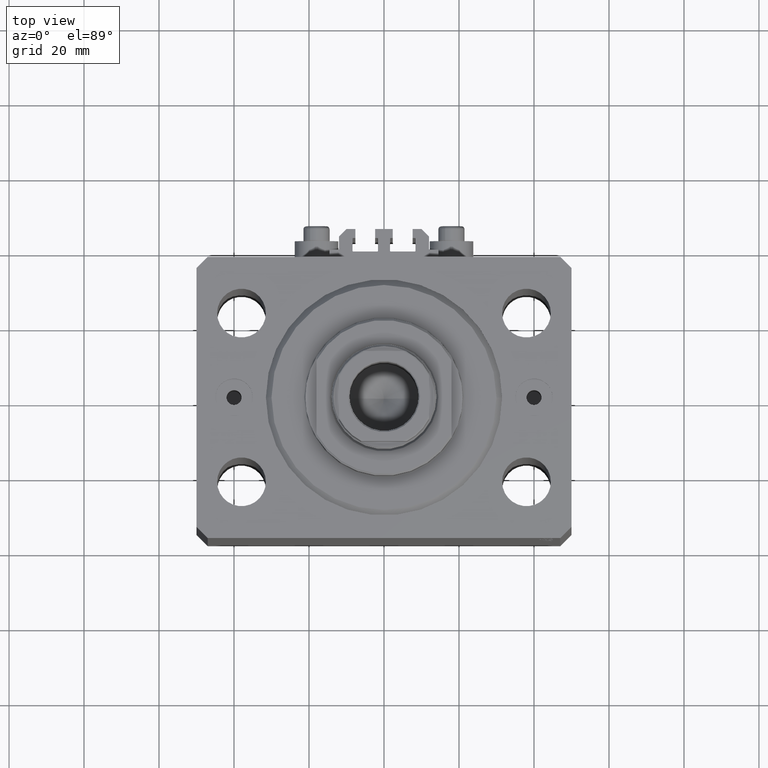
[diagram: clean part render]
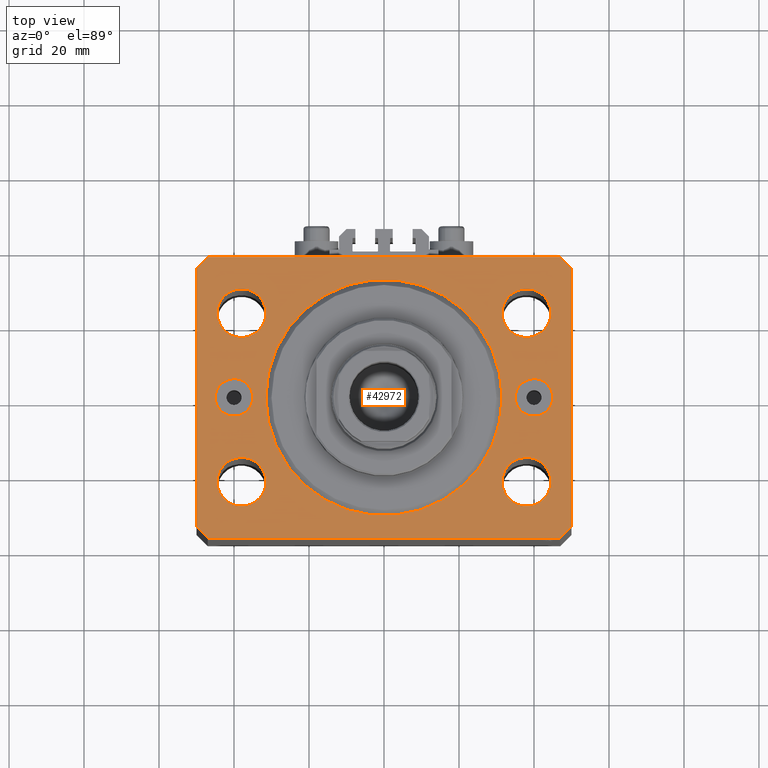
[diagram: same view with one face highlighted and labeled with its STEP entity id]
A machine part, top view. The second image highlights one B-rep face of the part: STEP entity #42972.
In plain terms, the highlighted planar face has unit normal (0, 0, 1).
Its self-contained STEP definition (entity closure, byte-faithful):
#624 = EDGE_CURVE ( 'NONE', #28761, #16161, #25371, .T. ) ;
#760 = CARTESIAN_POINT ( 'NONE',  ( -45.00000000000000000, 6.123233995736762338E-16, 0.000000000000000000 ) ) ;
#809 = LINE ( 'NONE', #14893, #33751 ) ;
#962 = AXIS2_PLACEMENT_3D ( 'NONE', #33482, #41123, #44930 ) ;
#981 = VERTEX_POINT ( 'NONE', #32816 ) ;
#1046 = LINE ( 'NONE', #18722, #46220 ) ;
#1399 = VERTEX_POINT ( 'NONE', #22482 ) ;
#1733 = CARTESIAN_POINT ( 'NONE',  ( -37.99999999999999289, -22.50000000000000000, 0.000000000000000000 ) ) ;
#1792 = ORIENTED_EDGE ( 'NONE', *, *, #4326, .F. ) ;
#1823 = VERTEX_POINT ( 'NONE', #39813 ) ;
#2071 = CARTESIAN_POINT ( 'NONE',  ( -40.00000000000000000, 0.000000000000000000, 0.000000000000000000 ) ) ;
#2648 = VECTOR ( 'NONE', #19748, 1000.000000000000114 ) ;
#2804 = CIRCLE ( 'NONE', #21122, 4.999999999999997335 ) ;
#2998 = EDGE_LOOP ( 'NONE', ( #16877, #42539, #40262, #36018, #20210, #13396, #7115, #42235 ) ) ;
#3267 = CARTESIAN_POINT ( 'NONE',  ( -35.00000000000000000, 0.000000000000000000, 0.000000000000000000 ) ) ;
#3641 = DIRECTION ( 'NONE',  ( 1.000000000000000000, 0.000000000000000000, 0.000000000000000000 ) ) ;
#3678 = CARTESIAN_POINT ( 'NONE',  ( 50.00000000000051870, 34.49999999999995026, 0.000000000000000000 ) ) ;
#3839 = DIRECTION ( 'NONE',  ( 0.000000000000000000, 0.000000000000000000, 1.000000000000000000 ) ) ;
#4183 = ORIENTED_EDGE ( 'NONE', *, *, #43724, .F. ) ;
#4326 = EDGE_CURVE ( 'NONE', #8476, #27739, #35389, .T. ) ;
#4404 = ORIENTED_EDGE ( 'NONE', *, *, #32918, .F. ) ;
#4913 = EDGE_LOOP ( 'NONE', ( #40438, #43888 ) ) ;
#5127 = EDGE_LOOP ( 'NONE', ( #35533, #23643 ) ) ;
#5786 = EDGE_CURVE ( 'NONE', #43250, #981, #24053, .T. ) ;
#5846 = EDGE_CURVE ( 'NONE', #9280, #25468, #7205, .T. ) ;
#5862 = LINE ( 'NONE', #27843, #34801 ) ;
#5881 = DIRECTION ( 'NONE',  ( 1.000000000000000000, 0.000000000000000000, 0.000000000000000000 ) ) ;
#5920 = FACE_BOUND ( 'NONE', #28524, .T. ) ;
#6667 = LINE ( 'NONE', #45672, #28736 ) ;
#6945 = ORIENTED_EDGE ( 'NONE', *, *, #36798, .F. ) ;
#7115 = ORIENTED_EDGE ( 'NONE', *, *, #24362, .T. ) ;
#7205 = CIRCLE ( 'NONE', #40768, 4.999999999999997335 ) ;
#7244 = DIRECTION ( 'NONE',  ( 0.000000000000000000, -0.000000000000000000, -1.000000000000000000 ) ) ;
#7776 = EDGE_CURVE ( 'NONE', #8882, #1823, #35689, .T. ) ;
#7910 = DIRECTION ( 'NONE',  ( 0.000000000000000000, 0.000000000000000000, 1.000000000000000000 ) ) ;
#8434 = CARTESIAN_POINT ( 'NONE',  ( 50.00000000000000000, -34.50000000000000711, 0.000000000000000000 ) ) ;
#8476 = VERTEX_POINT ( 'NONE', #30689 ) ;
#8882 = VERTEX_POINT ( 'NONE', #16052 ) ;
#9114 = ORIENTED_EDGE ( 'NONE', *, *, #36540, .T. ) ;
#9177 = CARTESIAN_POINT ( 'NONE',  ( 44.50000000000000000, 22.49999999999998934, 0.000000000000000000 ) ) ;
#9280 = VERTEX_POINT ( 'NONE', #3267 ) ;
#9493 = FACE_OUTER_BOUND ( 'NONE', #2998, .T. ) ;
#9703 = ORIENTED_EDGE ( 'NONE', *, *, #36447, .F. ) ;
#10044 = CIRCLE ( 'NONE', #11568, 6.499999999999999112 ) ;
#10147 = ORIENTED_EDGE ( 'NONE', *, *, #624, .T. ) ;
#10655 = LINE ( 'NONE', #40042, #24564 ) ;
#11212 = ORIENTED_EDGE ( 'NONE', *, *, #29183, .F. ) ;
#11330 = CARTESIAN_POINT ( 'NONE',  ( -40.00000000000000000, 0.000000000000000000, 0.000000000000000000 ) ) ;
#11568 = AXIS2_PLACEMENT_3D ( 'NONE', #40505, #36229, #43406 ) ;
#12655 = EDGE_CURVE ( 'NONE', #16584, #23881, #21812, .T. ) ;
#12843 = FACE_BOUND ( 'NONE', #40115, .T. ) ;
#13070 = CARTESIAN_POINT ( 'NONE',  ( -31.49999999999999289, -22.50000000000000000, 0.000000000000000000 ) ) ;
#13396 = ORIENTED_EDGE ( 'NONE', *, *, #13492, .T. ) ;
#13492 = EDGE_CURVE ( 'NONE', #1399, #38807, #1046, .T. ) ;
#13560 = CARTESIAN_POINT ( 'NONE',  ( 0.000000000000000000, 0.000000000000000000, 0.000000000000000000 ) ) ;
#14070 = DIRECTION ( 'NONE',  ( 1.000000000000000000, -1.476360405086644309E-16, 0.000000000000000000 ) ) ;
#14723 = CARTESIAN_POINT ( 'NONE',  ( 31.50000000000000000, 22.49999999999998934, 0.000000000000000000 ) ) ;
#14780 = AXIS2_PLACEMENT_3D ( 'NONE', #44702, #7910, #26564 ) ;
#14805 = CIRCLE ( 'NONE', #17100, 31.50000000000000000 ) ;
#14892 = EDGE_CURVE ( 'NONE', #37619, #8882, #5862, .T. ) ;
#14893 = CARTESIAN_POINT ( 'NONE',  ( 50.00000000000000000, -34.50000000000000711, 0.000000000000000000 ) ) ;
#15058 = ORIENTED_EDGE ( 'NONE', *, *, #15812, .F. ) ;
#15309 = AXIS2_PLACEMENT_3D ( 'NONE', #11330, #42085, #26153 ) ;
#15395 = CARTESIAN_POINT ( 'NONE',  ( 0.000000000000000000, 0.000000000000000000, 0.000000000000000000 ) ) ;
#15557 = AXIS2_PLACEMENT_3D ( 'NONE', #44008, #36145, #3641 ) ;
#15636 = VECTOR ( 'NONE', #28285, 1000.000000000000000 ) ;
#15812 = EDGE_CURVE ( 'NONE', #23881, #16584, #37895, .T. ) ;
#16052 = CARTESIAN_POINT ( 'NONE',  ( -50.00000000000001421, 34.50000000000000000, 0.000000000000000000 ) ) ;
#16161 = VERTEX_POINT ( 'NONE', #27268 ) ;
#16264 = CARTESIAN_POINT ( 'NONE',  ( -31.50000000000000000, 22.49999999999999645, 0.000000000000000000 ) ) ;
#16360 = CARTESIAN_POINT ( 'NONE',  ( 31.50000000000000000, 0.000000000000000000, 0.000000000000000000 ) ) ;
#16584 = VERTEX_POINT ( 'NONE', #30736 ) ;
#16599 = DIRECTION ( 'NONE',  ( 0.000000000000000000, 0.000000000000000000, 1.000000000000000000 ) ) ;
#16877 = ORIENTED_EDGE ( 'NONE', *, *, #42039, .T. ) ;
#17100 = AXIS2_PLACEMENT_3D ( 'NONE', #15395, #19452, #37605 ) ;
#17151 = DIRECTION ( 'NONE',  ( 0.000000000000000000, 0.000000000000000000, 1.000000000000000000 ) ) ;
#17397 = CARTESIAN_POINT ( 'NONE',  ( 38.00000000000000000, 22.49999999999998934, 0.000000000000000000 ) ) ;
#17407 = AXIS2_PLACEMENT_3D ( 'NONE', #17397, #46294, #39134 ) ;
#18423 = DIRECTION ( 'NONE',  ( 1.000000000000000000, 0.000000000000000000, 0.000000000000000000 ) ) ;
#18505 = DIRECTION ( 'NONE',  ( 1.000000000000000000, 0.000000000000000000, 0.000000000000000000 ) ) ;
#18722 = CARTESIAN_POINT ( 'NONE',  ( 47.00000000000000000, -37.50000000000000711, 0.000000000000000000 ) ) ;
#19452 = DIRECTION ( 'NONE',  ( 0.000000000000000000, 0.000000000000000000, 1.000000000000000000 ) ) ;
#19635 = VERTEX_POINT ( 'NONE', #14723 ) ;
#19748 = DIRECTION ( 'NONE',  ( -0.7071067811865361374, 0.7071067811865588970, 0.000000000000000000 ) ) ;
#19802 = CARTESIAN_POINT ( 'NONE',  ( -31.50000000000000000, 3.857637417314162689E-15, 0.000000000000000000 ) ) ;
#20179 = EDGE_CURVE ( 'NONE', #25468, #9280, #23696, .T. ) ;
#20210 = ORIENTED_EDGE ( 'NONE', *, *, #35617, .T. ) ;
#21122 = AXIS2_PLACEMENT_3D ( 'NONE', #43104, #7244, #21833 ) ;
#21786 = CARTESIAN_POINT ( 'NONE',  ( -47.00000000000001421, 37.50000000000000000, 0.000000000000000000 ) ) ;
#21812 = CIRCLE ( 'NONE', #37824, 6.499999999999999112 ) ;
#21833 = DIRECTION ( 'NONE',  ( 1.000000000000000000, 0.000000000000000000, 0.000000000000000000 ) ) ;
#22047 = VERTEX_POINT ( 'NONE', #36459 ) ;
#22466 = EDGE_LOOP ( 'NONE', ( #10147, #9114 ) ) ;
#22482 = CARTESIAN_POINT ( 'NONE',  ( 47.00000000000000000, -37.50000000000000711, 0.000000000000000000 ) ) ;
#22723 = VECTOR ( 'NONE', #28130, 1000.000000000000000 ) ;
#22755 = AXIS2_PLACEMENT_3D ( 'NONE', #13560, #17151, #28138 ) ;
#23622 = CARTESIAN_POINT ( 'NONE',  ( 45.00000000000000000, 0.000000000000000000, 0.000000000000000000 ) ) ;
#23643 = ORIENTED_EDGE ( 'NONE', *, *, #29356, .F. ) ;
#23696 = CIRCLE ( 'NONE', #15309, 4.999999999999997335 ) ;
#23881 = VERTEX_POINT ( 'NONE', #13070 ) ;
#23997 = EDGE_CURVE ( 'NONE', #1823, #22047, #10655, .T. ) ;
#24053 = LINE ( 'NONE', #45536, #2648 ) ;
#24362 = EDGE_CURVE ( 'NONE', #38807, #43250, #809, .T. ) ;
#24564 = VECTOR ( 'NONE', #39810, 1000.000000000000114 ) ;
#25371 = CIRCLE ( 'NONE', #962, 4.999999999999997335 ) ;
#25468 = VERTEX_POINT ( 'NONE', #760 ) ;
#25546 = CARTESIAN_POINT ( 'NONE',  ( 38.00000000000000000, 22.49999999999998934, 0.000000000000000000 ) ) ;
#25661 = DIRECTION ( 'NONE',  ( 0.7071067811865483499, 0.7071067811865466846, 0.000000000000000000 ) ) ;
#26051 = CARTESIAN_POINT ( 'NONE',  ( -50.00000000000001421, 34.50000000000000000, 0.000000000000000000 ) ) ;
#26153 = DIRECTION ( 'NONE',  ( 1.000000000000000000, 0.000000000000000000, 0.000000000000000000 ) ) ;
#26340 = AXIS2_PLACEMENT_3D ( 'NONE', #25546, #47039, #29592 ) ;
#26564 = DIRECTION ( 'NONE',  ( 1.000000000000000000, 0.000000000000000000, 0.000000000000000000 ) ) ;
#26632 = DIRECTION ( 'NONE',  ( 0.000000000000000000, 0.000000000000000000, 1.000000000000000000 ) ) ;
#26825 = DIRECTION ( 'NONE',  ( 0.000000000000000000, 0.000000000000000000, 1.000000000000000000 ) ) ;
#27178 = CARTESIAN_POINT ( 'NONE',  ( 47.00000000000056843, 37.49999999999999289, 0.000000000000000000 ) ) ;
#27268 = CARTESIAN_POINT ( 'NONE',  ( 35.00000000000000000, 6.123233995736762338E-16, 0.000000000000000000 ) ) ;
#27427 = FACE_BOUND ( 'NONE', #22466, .T. ) ;
#27464 = EDGE_CURVE ( 'NONE', #45911, #34480, #10044, .T. ) ;
#27739 = VERTEX_POINT ( 'NONE', #36634 ) ;
#27843 = CARTESIAN_POINT ( 'NONE',  ( -47.00000000000001421, 37.50000000000000000, 0.000000000000000000 ) ) ;
#28130 = DIRECTION ( 'NONE',  ( -1.000000000000000000, 7.381802025433175941E-17, 0.000000000000000000 ) ) ;
#28138 = DIRECTION ( 'NONE',  ( 1.000000000000000000, 0.000000000000000000, -0.000000000000000000 ) ) ;
#28175 = ORIENTED_EDGE ( 'NONE', *, *, #12655, .F. ) ;
#28285 = DIRECTION ( 'NONE',  ( 2.011273595335428326E-16, -1.000000000000000000, 0.000000000000000000 ) ) ;
#28524 = EDGE_LOOP ( 'NONE', ( #4404, #4183 ) ) ;
#28726 = VERTEX_POINT ( 'NONE', #19802 ) ;
#28736 = VECTOR ( 'NONE', #14070, 1000.000000000000000 ) ;
#28761 = VERTEX_POINT ( 'NONE', #23622 ) ;
#29183 = EDGE_CURVE ( 'NONE', #37163, #28726, #14805, .T. ) ;
#29356 = EDGE_CURVE ( 'NONE', #34480, #45911, #37687, .T. ) ;
#29592 = DIRECTION ( 'NONE',  ( 1.000000000000000000, 0.000000000000000000, 0.000000000000000000 ) ) ;
#30689 = CARTESIAN_POINT ( 'NONE',  ( 31.49999999999999289, -22.50000000000000000, 0.000000000000000000 ) ) ;
#30736 = CARTESIAN_POINT ( 'NONE',  ( -44.49999999999999289, -22.50000000000000000, 0.000000000000000000 ) ) ;
#31044 = CIRCLE ( 'NONE', #44780, 31.50000000000000000 ) ;
#31196 = DIRECTION ( 'NONE',  ( -0.7071067811865483499, -0.7071067811865466846, 0.000000000000000000 ) ) ;
#31408 = EDGE_LOOP ( 'NONE', ( #15058, #28175 ) ) ;
#31716 = FACE_BOUND ( 'NONE', #5127, .T. ) ;
#32210 = VERTEX_POINT ( 'NONE', #9177 ) ;
#32442 = CARTESIAN_POINT ( 'NONE',  ( -44.50000000000000000, 22.49999999999999645, 0.000000000000000000 ) ) ;
#32816 = CARTESIAN_POINT ( 'NONE',  ( 47.00000000000056843, 37.49999999999999289, 0.000000000000000000 ) ) ;
#32918 = EDGE_CURVE ( 'NONE', #32210, #19635, #34750, .T. ) ;
#33482 = CARTESIAN_POINT ( 'NONE',  ( 40.00000000000000000, 0.000000000000000000, 0.000000000000000000 ) ) ;
#33751 = VECTOR ( 'NONE', #39983, 1000.000000000000000 ) ;
#34077 = CIRCLE ( 'NONE', #37884, 6.499999999999999112 ) ;
#34088 = DIRECTION ( 'NONE',  ( 0.000000000000000000, 0.000000000000000000, 1.000000000000000000 ) ) ;
#34480 = VERTEX_POINT ( 'NONE', #32442 ) ;
#34750 = CIRCLE ( 'NONE', #26340, 6.499999999999999112 ) ;
#34801 = VECTOR ( 'NONE', #31196, 1000.000000000000000 ) ;
#35068 = FACE_BOUND ( 'NONE', #41322, .T. ) ;
#35299 = PLANE ( 'NONE',  #22755 ) ;
#35389 = CIRCLE ( 'NONE', #14780, 6.499999999999999112 ) ;
#35533 = ORIENTED_EDGE ( 'NONE', *, *, #27464, .F. ) ;
#35617 = EDGE_CURVE ( 'NONE', #22047, #1399, #6667, .T. ) ;
#35689 = LINE ( 'NONE', #26051, #15636 ) ;
#36018 = ORIENTED_EDGE ( 'NONE', *, *, #23997, .T. ) ;
#36145 = DIRECTION ( 'NONE',  ( 0.000000000000000000, 0.000000000000000000, 1.000000000000000000 ) ) ;
#36229 = DIRECTION ( 'NONE',  ( 0.000000000000000000, 0.000000000000000000, 1.000000000000000000 ) ) ;
#36447 = EDGE_CURVE ( 'NONE', #27739, #8476, #34077, .T. ) ;
#36459 = CARTESIAN_POINT ( 'NONE',  ( -47.00000000000000000, -37.49999999999999289, 0.000000000000000000 ) ) ;
#36540 = EDGE_CURVE ( 'NONE', #16161, #28761, #2804, .T. ) ;
#36584 = CARTESIAN_POINT ( 'NONE',  ( 0.000000000000000000, 0.000000000000000000, 0.000000000000000000 ) ) ;
#36634 = CARTESIAN_POINT ( 'NONE',  ( 44.49999999999999289, -22.50000000000000000, 0.000000000000000000 ) ) ;
#36798 = EDGE_CURVE ( 'NONE', #28726, #37163, #31044, .T. ) ;
#37163 = VERTEX_POINT ( 'NONE', #16360 ) ;
#37368 = CARTESIAN_POINT ( 'NONE',  ( -37.99999999999999289, -22.50000000000000000, 0.000000000000000000 ) ) ;
#37605 = DIRECTION ( 'NONE',  ( 1.000000000000000000, 0.000000000000000000, 0.000000000000000000 ) ) ;
#37619 = VERTEX_POINT ( 'NONE', #21786 ) ;
#37687 = CIRCLE ( 'NONE', #15557, 6.499999999999999112 ) ;
#37824 = AXIS2_PLACEMENT_3D ( 'NONE', #1733, #26825, #41401 ) ;
#37884 = AXIS2_PLACEMENT_3D ( 'NONE', #42875, #16599, #45737 ) ;
#37895 = CIRCLE ( 'NONE', #46295, 6.499999999999999112 ) ;
#37986 = CIRCLE ( 'NONE', #17407, 6.499999999999999112 ) ;
#38807 = VERTEX_POINT ( 'NONE', #8434 ) ;
#38884 = LINE ( 'NONE', #27178, #22723 ) ;
#38892 = FACE_BOUND ( 'NONE', #31408, .T. ) ;
#39134 = DIRECTION ( 'NONE',  ( 1.000000000000000000, 0.000000000000000000, 0.000000000000000000 ) ) ;
#39810 = DIRECTION ( 'NONE',  ( 0.7071067811865491270, -0.7071067811865459074, 0.000000000000000000 ) ) ;
#39813 = CARTESIAN_POINT ( 'NONE',  ( -50.00000000000000000, -34.50000000000000000, 0.000000000000000000 ) ) ;
#39983 = DIRECTION ( 'NONE',  ( 7.441712302741091634E-15, 1.000000000000000000, 0.000000000000000000 ) ) ;
#40042 = CARTESIAN_POINT ( 'NONE',  ( -50.00000000000000000, -34.50000000000000000, 0.000000000000000000 ) ) ;
#40115 = EDGE_LOOP ( 'NONE', ( #11212, #6945 ) ) ;
#40262 = ORIENTED_EDGE ( 'NONE', *, *, #7776, .T. ) ;
#40438 = ORIENTED_EDGE ( 'NONE', *, *, #5846, .F. ) ;
#40505 = CARTESIAN_POINT ( 'NONE',  ( -38.00000000000000000, 22.49999999999999645, 0.000000000000000000 ) ) ;
#40768 = AXIS2_PLACEMENT_3D ( 'NONE', #2071, #34088, #5881 ) ;
#41123 = DIRECTION ( 'NONE',  ( 0.000000000000000000, -0.000000000000000000, -1.000000000000000000 ) ) ;
#41322 = EDGE_LOOP ( 'NONE', ( #9703, #1792 ) ) ;
#41401 = DIRECTION ( 'NONE',  ( 1.000000000000000000, 0.000000000000000000, 0.000000000000000000 ) ) ;
#42039 = EDGE_CURVE ( 'NONE', #981, #37619, #38884, .T. ) ;
#42085 = DIRECTION ( 'NONE',  ( 0.000000000000000000, 0.000000000000000000, 1.000000000000000000 ) ) ;
#42235 = ORIENTED_EDGE ( 'NONE', *, *, #5786, .T. ) ;
#42539 = ORIENTED_EDGE ( 'NONE', *, *, #14892, .T. ) ;
#42875 = CARTESIAN_POINT ( 'NONE',  ( 37.99999999999999289, -22.50000000000000000, 0.000000000000000000 ) ) ;
#42972 = ADVANCED_FACE ( 'NONE', ( #9493, #31716, #5920, #35068, #38892, #12843, #46286, #27427 ), #35299, .T. ) ;
#43104 = CARTESIAN_POINT ( 'NONE',  ( 40.00000000000000000, 0.000000000000000000, 0.000000000000000000 ) ) ;
#43250 = VERTEX_POINT ( 'NONE', #3678 ) ;
#43406 = DIRECTION ( 'NONE',  ( 1.000000000000000000, 0.000000000000000000, 0.000000000000000000 ) ) ;
#43724 = EDGE_CURVE ( 'NONE', #19635, #32210, #37986, .T. ) ;
#43888 = ORIENTED_EDGE ( 'NONE', *, *, #20179, .F. ) ;
#44008 = CARTESIAN_POINT ( 'NONE',  ( -38.00000000000000000, 22.49999999999999645, 0.000000000000000000 ) ) ;
#44702 = CARTESIAN_POINT ( 'NONE',  ( 37.99999999999999289, -22.50000000000000000, 0.000000000000000000 ) ) ;
#44780 = AXIS2_PLACEMENT_3D ( 'NONE', #36584, #3839, #18423 ) ;
#44930 = DIRECTION ( 'NONE',  ( 1.000000000000000000, 0.000000000000000000, 0.000000000000000000 ) ) ;
#45536 = CARTESIAN_POINT ( 'NONE',  ( 50.00000000000051870, 34.49999999999995026, 0.000000000000000000 ) ) ;
#45672 = CARTESIAN_POINT ( 'NONE',  ( -47.00000000000000000, -37.49999999999999289, 0.000000000000000000 ) ) ;
#45737 = DIRECTION ( 'NONE',  ( 1.000000000000000000, 0.000000000000000000, 0.000000000000000000 ) ) ;
#45911 = VERTEX_POINT ( 'NONE', #16264 ) ;
#46220 = VECTOR ( 'NONE', #25661, 1000.000000000000000 ) ;
#46286 = FACE_BOUND ( 'NONE', #4913, .T. ) ;
#46294 = DIRECTION ( 'NONE',  ( 0.000000000000000000, 0.000000000000000000, 1.000000000000000000 ) ) ;
#46295 = AXIS2_PLACEMENT_3D ( 'NONE', #37368, #26632, #18505 ) ;
#47039 = DIRECTION ( 'NONE',  ( 0.000000000000000000, 0.000000000000000000, 1.000000000000000000 ) ) ;